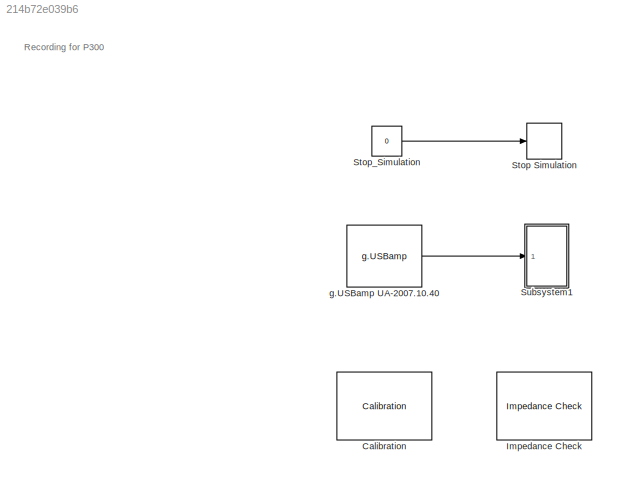
MODEL slx_214b72e039b6
KIND model
CONFIG AbsTol = auto
CONFIG EnableMultiTasking = on
CONFIG FixedStep = 1/256
CONFIG InitFcn = set_param('EEG_Record/Subsystem1/Gain1','Gain','0');\nset_param('EEG_Record/Stop_Simulation','value','0');\n\nts=1/256;
CONFIG MaxStep = auto
CONFIG MinStep = auto
CONFIG RelTol = 1e-3
CONFIG SampleTimeConstraint = Unconstrained
CONFIG Solver = FixedStepDiscrete
CONFIG SolverName = FixedStepDiscrete
CONFIG StartFcn = P300_Panel_Setting
CONFIG StartTime = 0.0
CONFIG StopTime = inf
BLOCK [Reference] Calibration  REF=Tools/Calibration
  FunctionWithSeparateData = off
  GeneratePreprocessorConditionals = off
  Ports = []
  ShowPortLabels = none
  SourceBlock = Tools/Calibration
  SystemSampleTime = -1
BLOCK [Reference] Impedance Check  REF=Tools/Impedance Check
  FunctionWithSeparateData = off
  GeneratePreprocessorConditionals = off
  Ports = []
  ShowPortLabels = none
  SourceBlock = Tools/Impedance Check
  SystemSampleTime = -1
BLOCK [Stop] Stop Simulation
BLOCK [Constant] Stop_Simulation
  SampleTime = ts
  Value = 0
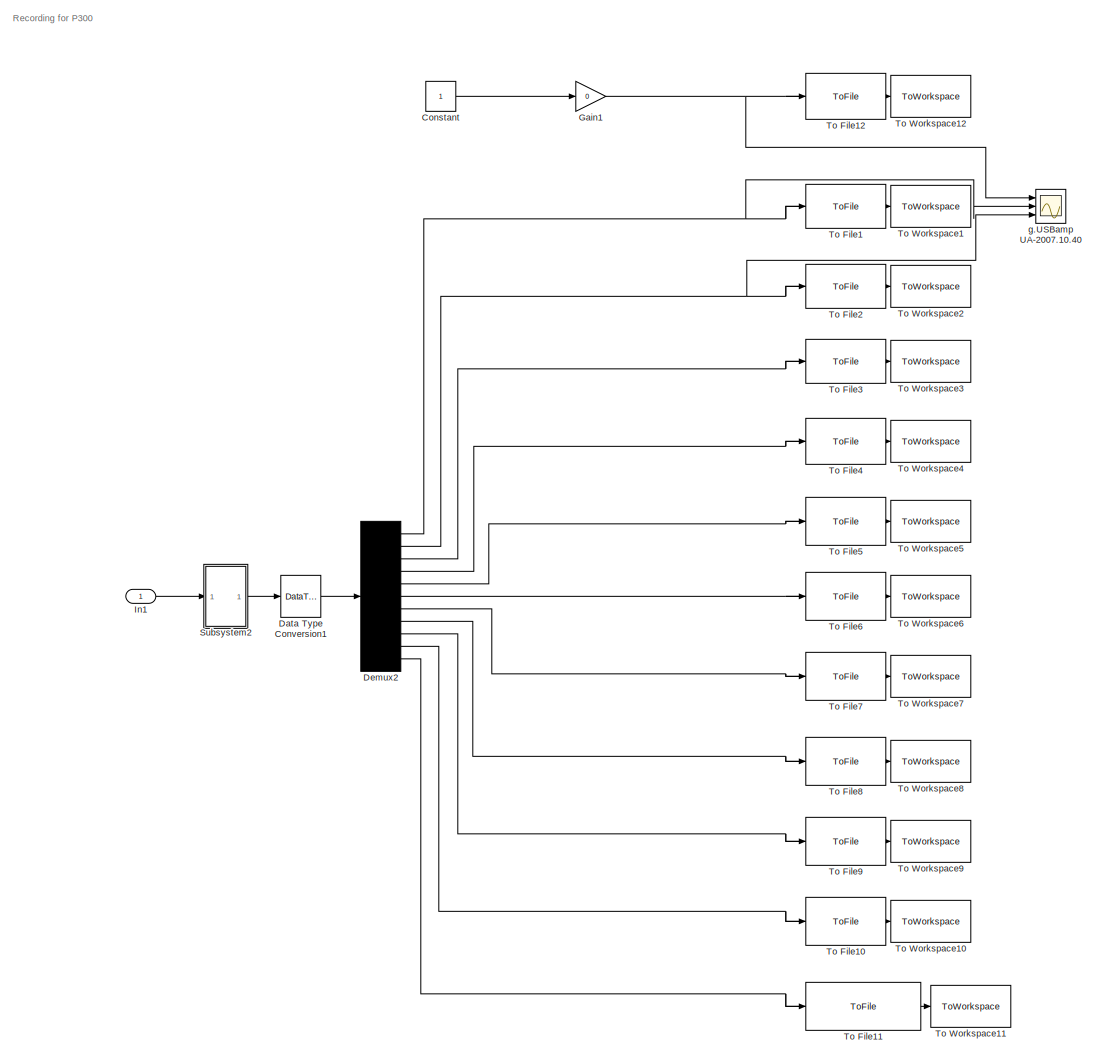
[diagram: Subsystem1 - part 1/1, most of the canvas]
BLOCK [SubSystem] Subsystem1
  Ports = [1]
  RequestExecContextInheritance = off
BLOCK [Constant] Subsystem1/Constant
BLOCK [DataTypeConversion] Subsystem1/Data Type Conversion1
  SampleTime = ts
BLOCK [Demux] Subsystem1/Demux2
  DisplayOption = bar
  Outputs = 11
  Ports = [1, 11]
BLOCK [Gain] Subsystem1/Gain1
  Gain = 0
  OutDataTypeStr = Inherit: Inherit via internal rule
  ParamDataTypeStr = Inherit: Inherit via internal rule
  SaturateOnIntegerOverflow = off
BLOCK [Inport] Subsystem1/In1
  IconDisplay = Port number
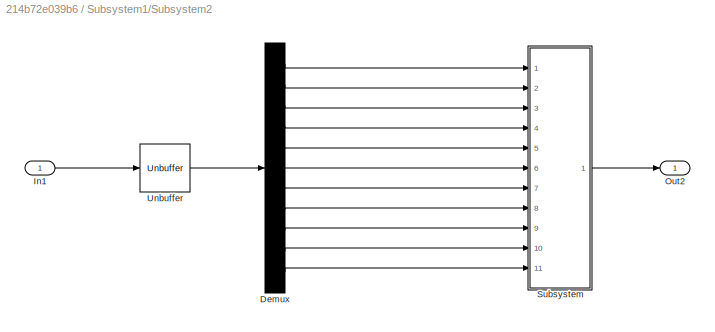
BLOCK [SubSystem] Subsystem1/Subsystem2
  Ports = [1, 1]
  RequestExecContextInheritance = off
BLOCK [Demux] Subsystem1/Subsystem2/Demux
  DisplayOption = bar
  Outputs = 11
  Ports = [1, 11]
BLOCK [Inport] Subsystem1/Subsystem2/In1
  IconDisplay = Port number
BLOCK [Outport] Subsystem1/Subsystem2/Out2
  IconDisplay = Port number
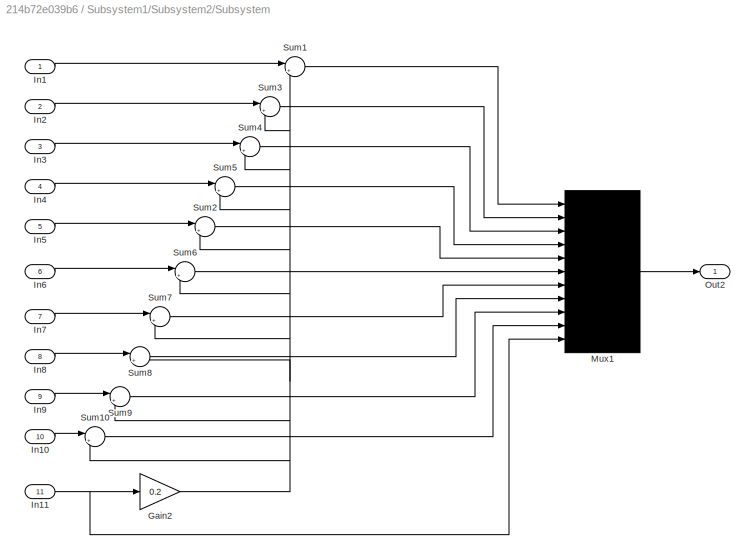
BLOCK [SubSystem] Subsystem1/Subsystem2/Subsystem
  Ports = [11, 1]
  RequestExecContextInheritance = off
BLOCK [Gain] Subsystem1/Subsystem2/Subsystem/Gain2
  Gain = 0.2
  OutDataTypeStr = Inherit: Inherit via internal rule
  ParamDataTypeStr = Inherit: Inherit via internal rule
  SampleTime = ts
  SaturateOnIntegerOverflow = off
BLOCK [Inport] Subsystem1/Subsystem2/Subsystem/In1
  IconDisplay = Port number
BLOCK [Inport] Subsystem1/Subsystem2/Subsystem/In10
  IconDisplay = Port number
  Port = 10
BLOCK [Inport] Subsystem1/Subsystem2/Subsystem/In11
  IconDisplay = Port number
  Port = 11
BLOCK [Inport] Subsystem1/Subsystem2/Subsystem/In2
  IconDisplay = Port number
  Port = 2
BLOCK [Inport] Subsystem1/Subsystem2/Subsystem/In3
  IconDisplay = Port number
  Port = 3
BLOCK [Inport] Subsystem1/Subsystem2/Subsystem/In4
  IconDisplay = Port number
  Port = 4
BLOCK [Inport] Subsystem1/Subsystem2/Subsystem/In5
  IconDisplay = Port number
  Port = 5
BLOCK [Inport] Subsystem1/Subsystem2/Subsystem/In6
  IconDisplay = Port number
  Port = 6
BLOCK [Inport] Subsystem1/Subsystem2/Subsystem/In7
  IconDisplay = Port number
  Port = 7
BLOCK [Inport] Subsystem1/Subsystem2/Subsystem/In8
  IconDisplay = Port number
  Port = 8
BLOCK [Inport] Subsystem1/Subsystem2/Subsystem/In9
  IconDisplay = Port number
  Port = 9
BLOCK [Mux] Subsystem1/Subsystem2/Subsystem/Mux1
  DisplayOption = bar
  Inputs = 11
  Ports = [11, 1]
BLOCK [Outport] Subsystem1/Subsystem2/Subsystem/Out2
  IconDisplay = Port number
BLOCK [Sum] Subsystem1/Subsystem2/Subsystem/Sum1
  IconShape = round
  InputSameDT = off
  Inputs = |+-
  OutDataTypeStr = Inherit: Inherit via internal rule
  Ports = [2, 1]
  SampleTime = ts
  SaturateOnIntegerOverflow = off
BLOCK [Sum] Subsystem1/Subsystem2/Subsystem/Sum10
  IconShape = round
  InputSameDT = off
  Inputs = |+-
  OutDataTypeStr = Inherit: Inherit via internal rule
  Ports = [2, 1]
  SampleTime = ts
  SaturateOnIntegerOverflow = off
BLOCK [Sum] Subsystem1/Subsystem2/Subsystem/Sum2
  IconShape = round
  InputSameDT = off
  Inputs = |+-
  OutDataTypeStr = Inherit: Inherit via internal rule
  Ports = [2, 1]
  SampleTime = ts
  SaturateOnIntegerOverflow = off
BLOCK [Sum] Subsystem1/Subsystem2/Subsystem/Sum3
  IconShape = round
  InputSameDT = off
  Inputs = |+-
  OutDataTypeStr = Inherit: Inherit via internal rule
  Ports = [2, 1]
  SampleTime = ts
  SaturateOnIntegerOverflow = off
BLOCK [Sum] Subsystem1/Subsystem2/Subsystem/Sum4
  IconShape = round
  InputSameDT = off
  Inputs = |+-
  OutDataTypeStr = Inherit: Inherit via internal rule
  Ports = [2, 1]
  SampleTime = ts
  SaturateOnIntegerOverflow = off
BLOCK [Sum] Subsystem1/Subsystem2/Subsystem/Sum5
  IconShape = round
  InputSameDT = off
  Inputs = |+-
  OutDataTypeStr = Inherit: Inherit via internal rule
  Ports = [2, 1]
  SampleTime = ts
  SaturateOnIntegerOverflow = off
BLOCK [Sum] Subsystem1/Subsystem2/Subsystem/Sum6
  IconShape = round
  InputSameDT = off
  Inputs = |+-
  OutDataTypeStr = Inherit: Inherit via internal rule
  Ports = [2, 1]
  SampleTime = ts
  SaturateOnIntegerOverflow = off
BLOCK [Sum] Subsystem1/Subsystem2/Subsystem/Sum7
  IconShape = round
  InputSameDT = off
  Inputs = |+-
  OutDataTypeStr = Inherit: Inherit via internal rule
  Ports = [2, 1]
  SampleTime = ts
  SaturateOnIntegerOverflow = off
BLOCK [Sum] Subsystem1/Subsystem2/Subsystem/Sum8
  IconShape = round
  InputSameDT = off
  Inputs = |+-
  OutDataTypeStr = Inherit: Inherit via internal rule
  Ports = [2, 1]
  SampleTime = ts
  SaturateOnIntegerOverflow = off
BLOCK [Sum] Subsystem1/Subsystem2/Subsystem/Sum9
  IconShape = round
  InputSameDT = off
  Inputs = |+-
  OutDataTypeStr = Inherit: Inherit via internal rule
  Ports = [2, 1]
  SampleTime = ts
  SaturateOnIntegerOverflow = off
BLOCK [Unbuffer] Subsystem1/Subsystem2/Unbuffer
  Ports = [1, 1]
BLOCK [ToFile] Subsystem1/To File1
  Filename = canal1.mat
  MatrixName = canal1
  Ports = [1]
  SampleTime = ts
BLOCK [ToFile] Subsystem1/To File10
  Filename = canal10.mat
  MatrixName = canal10
  Ports = [1]
  SampleTime = ts
BLOCK [ToFile] Subsystem1/To File11
  Filename = canal11eyeblink.mat
  MatrixName = canal11eyeblink
  Ports = [1]
  SampleTime = ts
BLOCK [ToFile] Subsystem1/To File12
  Filename = StartStop.mat
  MatrixName = StartStop
  Ports = [1]
  SampleTime = ts
BLOCK [ToFile] Subsystem1/To File2
  Filename = canal2.mat
  MatrixName = canal2
  Ports = [1]
  SampleTime = ts
BLOCK [ToFile] Subsystem1/To File3
  Filename = canal3.mat
  MatrixName = canal3
  Ports = [1]
  SampleTime = ts
BLOCK [ToFile] Subsystem1/To File4
  Filename = canal4.mat
  MatrixName = canal4
  Ports = [1]
  SampleTime = ts
BLOCK [ToFile] Subsystem1/To File5
  Filename = canal5.mat
  MatrixName = canal5
  Ports = [1]
  SampleTime = ts
BLOCK [ToFile] Subsystem1/To File6
  Filename = canal6.mat
  MatrixName = canal6
  Ports = [1]
  SampleTime = ts
BLOCK [ToFile] Subsystem1/To File7
  Filename = canal7.mat
  MatrixName = canal7
  Ports = [1]
  SampleTime = ts
BLOCK [ToFile] Subsystem1/To File8
  Filename = canal8.mat
  MatrixName = canal8
  Ports = [1]
  SampleTime = ts
BLOCK [ToFile] Subsystem1/To File9
  Filename = canal9.mat
  MatrixName = canal9
  Ports = [1]
  SampleTime = ts
BLOCK [ToWorkspace] Subsystem1/To Workspace1
  MaxDataPoints = inf
  Ports = [1]
  SampleTime = ts
  VariableName = canal1
BLOCK [ToWorkspace] Subsystem1/To Workspace10
  MaxDataPoints = inf
  Ports = [1]
  SampleTime = ts
  VariableName = canal10
BLOCK [ToWorkspace] Subsystem1/To Workspace11
  MaxDataPoints = inf
  Ports = [1]
  SampleTime = ts
  VariableName = canal11eyeblink
BLOCK [ToWorkspace] Subsystem1/To Workspace12
  MaxDataPoints = inf
  Ports = [1]
  SampleTime = ts
  VariableName = StartStop
BLOCK [ToWorkspace] Subsystem1/To Workspace2
  MaxDataPoints = inf
  Ports = [1]
  SampleTime = ts
  VariableName = canal2
BLOCK [ToWorkspace] Subsystem1/To Workspace3
  MaxDataPoints = inf
  Ports = [1]
  SampleTime = ts
  VariableName = canal3
BLOCK [ToWorkspace] Subsystem1/To Workspace4
  MaxDataPoints = inf
  Ports = [1]
  SampleTime = ts
  VariableName = canal4
BLOCK [ToWorkspace] Subsystem1/To Workspace5 
  MaxDataPoints = inf
  Ports = [1]
  SampleTime = ts
  VariableName = canal5
BLOCK [ToWorkspace] Subsystem1/To Workspace6 
  MaxDataPoints = inf
  Ports = [1]
  SampleTime = ts
  VariableName = canal6
BLOCK [ToWorkspace] Subsystem1/To Workspace7
  MaxDataPoints = inf
  Ports = [1]
  SampleTime = ts
  VariableName = canal7
BLOCK [ToWorkspace] Subsystem1/To Workspace8
  MaxDataPoints = inf
  Ports = [1]
  SampleTime = ts
  VariableName = canal8
BLOCK [ToWorkspace] Subsystem1/To Workspace9
  MaxDataPoints = inf
  Ports = [1]
  SampleTime = ts
  VariableName = canal9
BLOCK [Scope] Subsystem1/g.USBamp UA-2007.10.40
  Floating = off
  NumInputPorts = 3
  Ports = [3]
  ShowLegends = off
BLOCK [Reference] g.USBamp UA-2007.10.40  REF=gUSBamplib/g.USBamp
  Ports = [2, 1]
  Priority = 2
  SourceBlock = gUSBamplib/g.USBamp
  cfg = currentCFG_EEG_Record_UA-2007.10.40.cfg
  snr = UA-2007.10.40
ANNOTATION (root): Recording for P300
ANNOTATION Subsystem1: Recording for P300
LINE Stop_Simulation:1 -> Stop Simulation:1
LINE Subsystem1/Constant:1 -> Subsystem1/Gain1:1
LINE Subsystem1/Data Type Conversion1:1 -> Subsystem1/Demux2:1
NET Subsystem1/Demux2:1 -> Subsystem1/To File1:1, Subsystem1/To Workspace1:1, Subsystem1/g.USBamp UA-2007.10.40:2
NET Subsystem1/Demux2:10 -> Subsystem1/To File10:1, Subsystem1/To Workspace10:1
NET Subsystem1/Demux2:11 -> Subsystem1/To File11:1, Subsystem1/To Workspace11:1
NET Subsystem1/Demux2:2 -> Subsystem1/To File2:1, Subsystem1/To Workspace2:1, Subsystem1/g.USBamp UA-2007.10.40:3
NET Subsystem1/Demux2:3 -> Subsystem1/To File3:1, Subsystem1/To Workspace3:1
NET Subsystem1/Demux2:4 -> Subsystem1/To File4:1, Subsystem1/To Workspace4:1
NET Subsystem1/Demux2:5 -> Subsystem1/To File5:1, Subsystem1/To Workspace5 :1
NET Subsystem1/Demux2:6 -> Subsystem1/To File6:1, Subsystem1/To Workspace6 :1
NET Subsystem1/Demux2:7 -> Subsystem1/To File7:1, Subsystem1/To Workspace7:1
NET Subsystem1/Demux2:8 -> Subsystem1/To File8:1, Subsystem1/To Workspace8:1
NET Subsystem1/Demux2:9 -> Subsystem1/To File9:1, Subsystem1/To Workspace9:1
NET Subsystem1/Gain1:1 -> Subsystem1/To File12:1, Subsystem1/To Workspace12:1, Subsystem1/g.USBamp UA-2007.10.40:1
LINE Subsystem1/In1:1 -> Subsystem1/Subsystem2:1
LINE Subsystem1/Subsystem2/Demux:1 -> Subsystem1/Subsystem2/Subsystem:1
LINE Subsystem1/Subsystem2/Demux:10 -> Subsystem1/Subsystem2/Subsystem:10
LINE Subsystem1/Subsystem2/Demux:11 -> Subsystem1/Subsystem2/Subsystem:11
LINE Subsystem1/Subsystem2/Demux:2 -> Subsystem1/Subsystem2/Subsystem:2
LINE Subsystem1/Subsystem2/Demux:3 -> Subsystem1/Subsystem2/Subsystem:3
LINE Subsystem1/Subsystem2/Demux:4 -> Subsystem1/Subsystem2/Subsystem:4
LINE Subsystem1/Subsystem2/Demux:5 -> Subsystem1/Subsystem2/Subsystem:5
LINE Subsystem1/Subsystem2/Demux:6 -> Subsystem1/Subsystem2/Subsystem:6
LINE Subsystem1/Subsystem2/Demux:7 -> Subsystem1/Subsystem2/Subsystem:7
LINE Subsystem1/Subsystem2/Demux:8 -> Subsystem1/Subsystem2/Subsystem:8
LINE Subsystem1/Subsystem2/Demux:9 -> Subsystem1/Subsystem2/Subsystem:9
LINE Subsystem1/Subsystem2/In1:1 -> Subsystem1/Subsystem2/Unbuffer:1
NET Subsystem1/Subsystem2/Subsystem/Gain2:1 -> Subsystem1/Subsystem2/Subsystem/Sum10:2, Subsystem1/Subsystem2/Subsystem/Sum1:2, Subsystem1/Subsystem2/Subsystem/Sum2:2, Subsystem1/Subsystem2/Subsystem/Sum3:2, Subsystem1/Subsystem2/Subsystem/Sum4:2, Subsystem1/Subsystem2/Subsystem/Sum5:2, Subsystem1/Subsystem2/Subsystem/Sum6:2, Subsystem1/Subsystem2/Subsystem/Sum7:2, Subsystem1/Subsystem2/Subsystem/Sum8:2, Subsystem1/Subsystem2/Subsystem/Sum9:2
LINE Subsystem1/Subsystem2/Subsystem/In10:1 -> Subsystem1/Subsystem2/Subsystem/Sum10:1
NET Subsystem1/Subsystem2/Subsystem/In11:1 -> Subsystem1/Subsystem2/Subsystem/Gain2:1, Subsystem1/Subsystem2/Subsystem/Mux1:11
LINE Subsystem1/Subsystem2/Subsystem/In1:1 -> Subsystem1/Subsystem2/Subsystem/Sum1:1
LINE Subsystem1/Subsystem2/Subsystem/In2:1 -> Subsystem1/Subsystem2/Subsystem/Sum3:1
LINE Subsystem1/Subsystem2/Subsystem/In3:1 -> Subsystem1/Subsystem2/Subsystem/Sum4:1
LINE Subsystem1/Subsystem2/Subsystem/In4:1 -> Subsystem1/Subsystem2/Subsystem/Sum5:1
LINE Subsystem1/Subsystem2/Subsystem/In5:1 -> Subsystem1/Subsystem2/Subsystem/Sum2:1
LINE Subsystem1/Subsystem2/Subsystem/In6:1 -> Subsystem1/Subsystem2/Subsystem/Sum6:1
LINE Subsystem1/Subsystem2/Subsystem/In7:1 -> Subsystem1/Subsystem2/Subsystem/Sum7:1
LINE Subsystem1/Subsystem2/Subsystem/In8:1 -> Subsystem1/Subsystem2/Subsystem/Sum8:1
LINE Subsystem1/Subsystem2/Subsystem/In9:1 -> Subsystem1/Subsystem2/Subsystem/Sum9:1
LINE Subsystem1/Subsystem2/Subsystem/Mux1:1 -> Subsystem1/Subsystem2/Subsystem/Out2:1
LINE Subsystem1/Subsystem2/Subsystem/Sum10:1 -> Subsystem1/Subsystem2/Subsystem/Mux1:10
LINE Subsystem1/Subsystem2/Subsystem/Sum1:1 -> Subsystem1/Subsystem2/Subsystem/Mux1:1
LINE Subsystem1/Subsystem2/Subsystem/Sum2:1 -> Subsystem1/Subsystem2/Subsystem/Mux1:5
LINE Subsystem1/Subsystem2/Subsystem/Sum3:1 -> Subsystem1/Subsystem2/Subsystem/Mux1:2
LINE Subsystem1/Subsystem2/Subsystem/Sum4:1 -> Subsystem1/Subsystem2/Subsystem/Mux1:3
LINE Subsystem1/Subsystem2/Subsystem/Sum5:1 -> Subsystem1/Subsystem2/Subsystem/Mux1:4
LINE Subsystem1/Subsystem2/Subsystem/Sum6:1 -> Subsystem1/Subsystem2/Subsystem/Mux1:6
LINE Subsystem1/Subsystem2/Subsystem/Sum7:1 -> Subsystem1/Subsystem2/Subsystem/Mux1:7
LINE Subsystem1/Subsystem2/Subsystem/Sum8:1 -> Subsystem1/Subsystem2/Subsystem/Mux1:8
LINE Subsystem1/Subsystem2/Subsystem/Sum9:1 -> Subsystem1/Subsystem2/Subsystem/Mux1:9
LINE Subsystem1/Subsystem2/Subsystem:1 -> Subsystem1/Subsystem2/Out2:1
LINE Subsystem1/Subsystem2/Unbuffer:1 -> Subsystem1/Subsystem2/Demux:1
LINE Subsystem1/Subsystem2:1 -> Subsystem1/Data Type Conversion1:1
LINE g.USBamp UA-2007.10.40:1 -> Subsystem1:1
note: NET lines group one-source signal fan-out (src -> all destinations, sorted); 1:1 wires keep LINE
